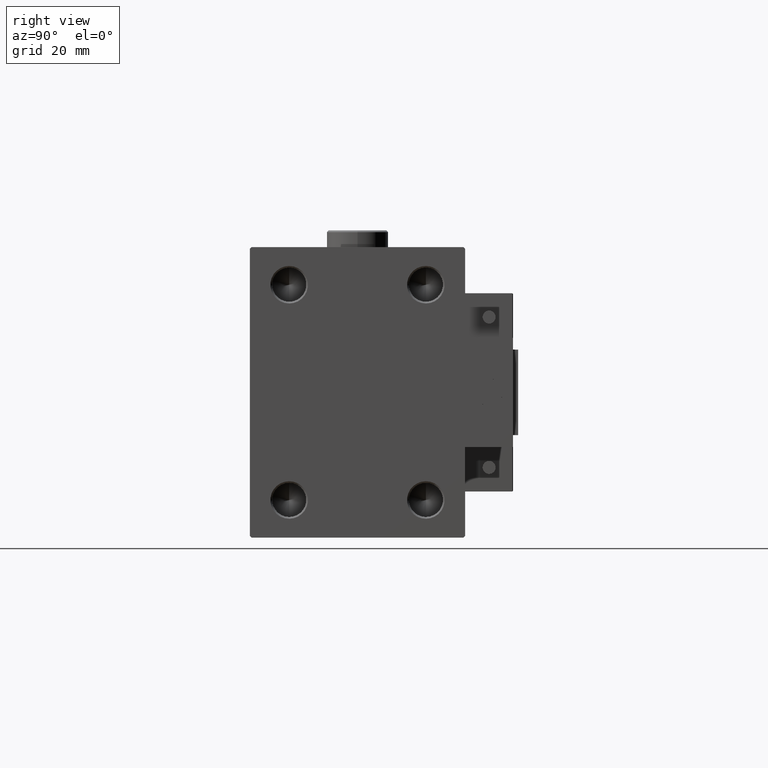
[diagram: clean part render]
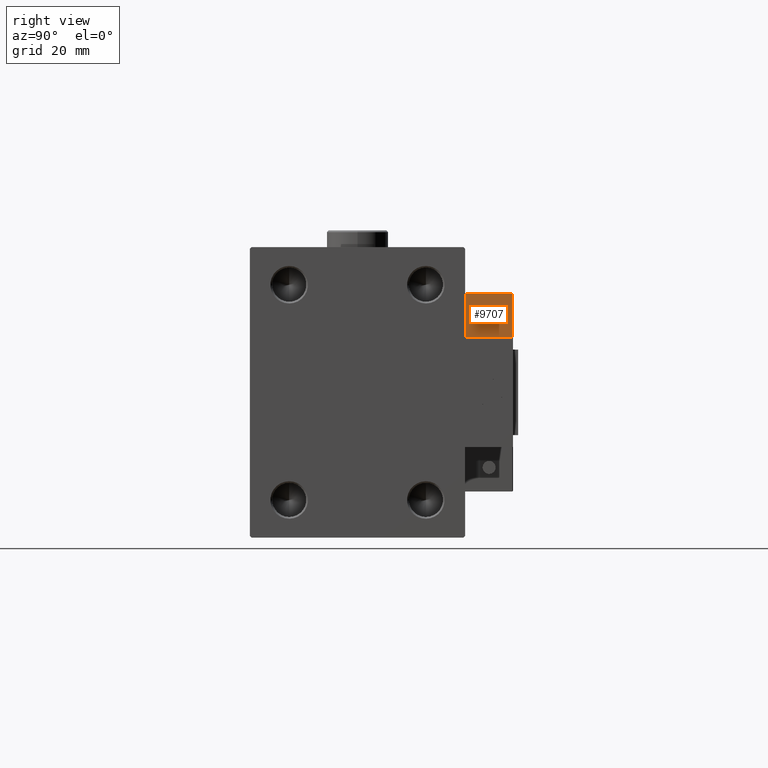
[diagram: same view with one face highlighted and labeled with its STEP entity id]
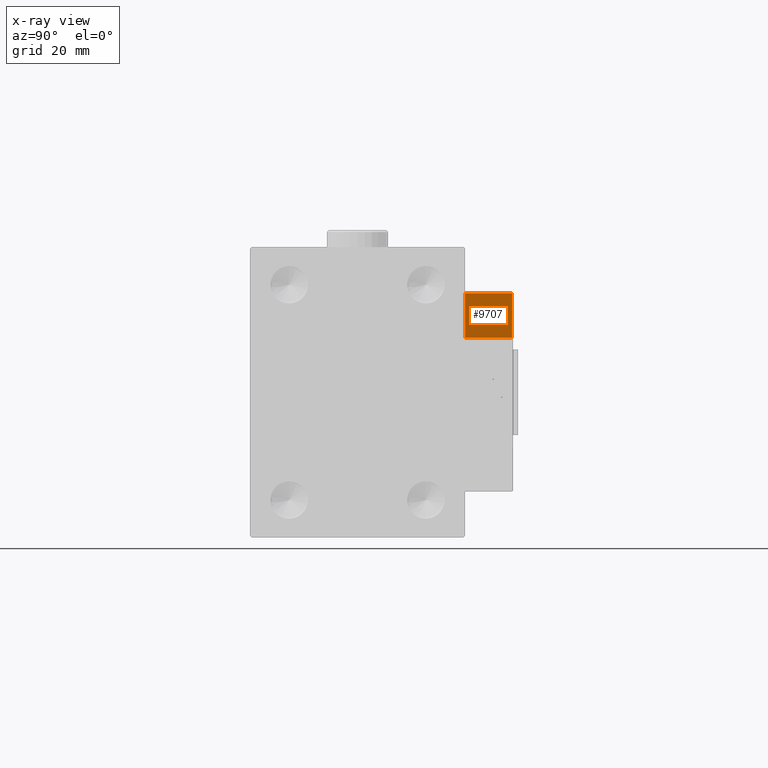
[diagram: x-ray of the same camera — body ghosted, the highlighted face saturated]
A machine part, right view. The second image highlights one B-rep face of the part: STEP entity #9707.
The next image is the same camera in x-ray: the body ghosted, the highlighted face saturated — about 6% of this face is hidden behind the body in this view.
In plain terms, the highlighted planar face has unit normal (-1, -0, -0).
Its self-contained STEP definition (entity closure, byte-faithful):
#56 = LINE ( 'NONE', #24221, #21949 ) ;
#4437 = LINE ( 'NONE', #36826, #41272 ) ;
#5060 = VERTEX_POINT ( 'NONE', #22775 ) ;
#6294 = VERTEX_POINT ( 'NONE', #15501 ) ;
#7115 = EDGE_CURVE ( 'NONE', #6294, #5060, #27830, .T. ) ;
#7385 = DIRECTION ( 'NONE',  ( -0.000000000000000000, -0.000000000000000000, -1.000000000000000000 ) ) ;
#7987 = EDGE_LOOP ( 'NONE', ( #18520, #20105, #18981, #11984 ) ) ;
#9707 = ADVANCED_FACE ( 'NONE', ( #18529 ), #26501, .F. ) ;
#10754 = VECTOR ( 'NONE', #20781, 1000.000000000000000 ) ;
#11984 = ORIENTED_EDGE ( 'NONE', *, *, #33168, .T. ) ;
#14528 = DIRECTION ( 'NONE',  ( 8.006416042969869188E-16, 1.000000000000000000, 0.000000000000000000 ) ) ;
#15501 = CARTESIAN_POINT ( 'NONE',  ( -26.99999999999994671, 7.000000000000005329, 13.70000000000000107 ) ) ;
#16257 = LINE ( 'NONE', #49247, #10754 ) ;
#16702 = AXIS2_PLACEMENT_3D ( 'NONE', #42715, #50967, #14528 ) ;
#18520 = ORIENTED_EDGE ( 'NONE', *, *, #7115, .F. ) ;
#18529 = FACE_OUTER_BOUND ( 'NONE', #7987, .T. ) ;
#18981 = ORIENTED_EDGE ( 'NONE', *, *, #42090, .T. ) ;
#19667 = CARTESIAN_POINT ( 'NONE',  ( -26.99999999999993605, 20.00000000000002132, 13.70000000000000107 ) ) ;
#20105 = ORIENTED_EDGE ( 'NONE', *, *, #34273, .T. ) ;
#20781 = DIRECTION ( 'NONE',  ( 8.006416042969869188E-16, 1.000000000000000000, -0.000000000000000000 ) ) ;
#21949 = VECTOR ( 'NONE', #51900, 1000.000000000000000 ) ;
#22775 = CARTESIAN_POINT ( 'NONE',  ( -26.99999999999994671, 7.000000000000005329, 0.000000000000000000 ) ) ;
#24221 = CARTESIAN_POINT ( 'NONE',  ( -26.99999999999993605, 20.00000000000002132, 14.00000000000000000 ) ) ;
#26501 = PLANE ( 'NONE',  #16702 ) ;
#27830 = LINE ( 'NONE', #40290, #32704 ) ;
#32704 = VECTOR ( 'NONE', #7385, 1000.000000000000000 ) ;
#33168 = EDGE_CURVE ( 'NONE', #47892, #5060, #4437, .T. ) ;
#34273 = EDGE_CURVE ( 'NONE', #6294, #40132, #16257, .T. ) ;
#36826 = CARTESIAN_POINT ( 'NONE',  ( -26.99999999999993605, 20.00000000000002132, 0.000000000000000000 ) ) ;
#40132 = VERTEX_POINT ( 'NONE', #19667 ) ;
#40290 = CARTESIAN_POINT ( 'NONE',  ( -26.99999999999994671, 7.000000000000005329, 14.00000000000000000 ) ) ;
#41272 = VECTOR ( 'NONE', #49097, 1000.000000000000000 ) ;
#42090 = EDGE_CURVE ( 'NONE', #40132, #47892, #56, .T. ) ;
#42715 = CARTESIAN_POINT ( 'NONE',  ( -26.99999999999993605, 20.00000000000002132, 14.00000000000000000 ) ) ;
#47892 = VERTEX_POINT ( 'NONE', #52331 ) ;
#49097 = DIRECTION ( 'NONE',  ( -8.006416042969869188E-16, -1.000000000000000000, 0.000000000000000000 ) ) ;
#49247 = CARTESIAN_POINT ( 'NONE',  ( -26.99999999999993605, 20.00000000000002132, 13.70000000000000107 ) ) ;
#50967 = DIRECTION ( 'NONE',  ( 1.000000000000000000, -8.006416042969869188E-16, 0.000000000000000000 ) ) ;
#51900 = DIRECTION ( 'NONE',  ( -0.000000000000000000, -0.000000000000000000, -1.000000000000000000 ) ) ;
#52331 = CARTESIAN_POINT ( 'NONE',  ( -26.99999999999993605, 20.00000000000002132, 0.000000000000000000 ) ) ;